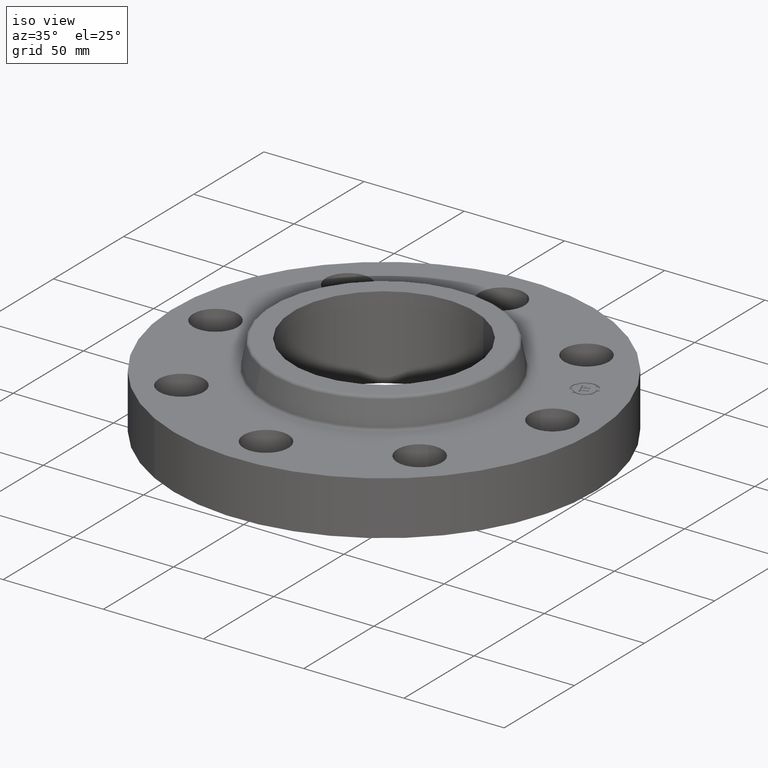
[diagram: clean part render]
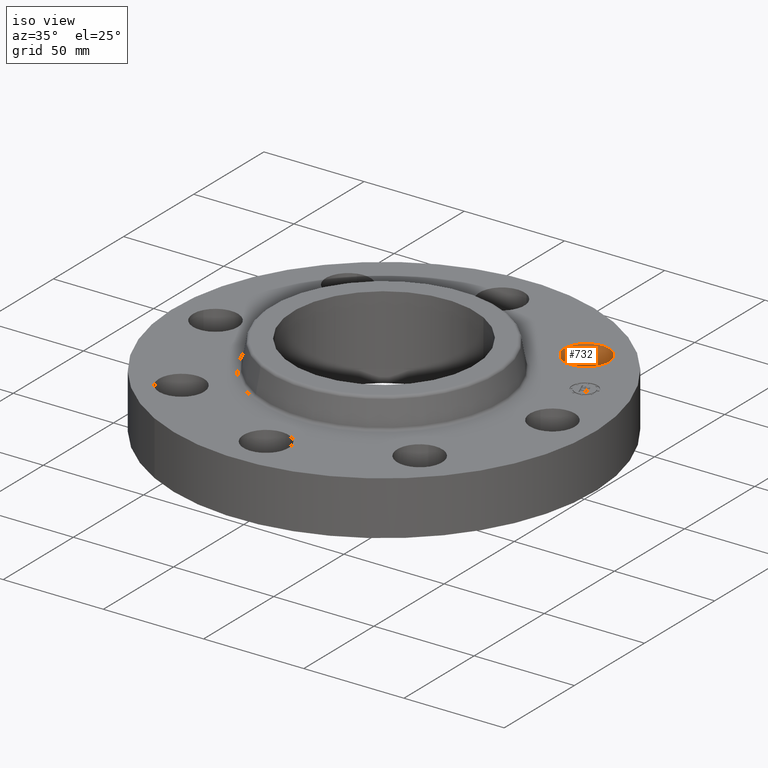
[diagram: same view with one face highlighted and labeled with its STEP entity id]
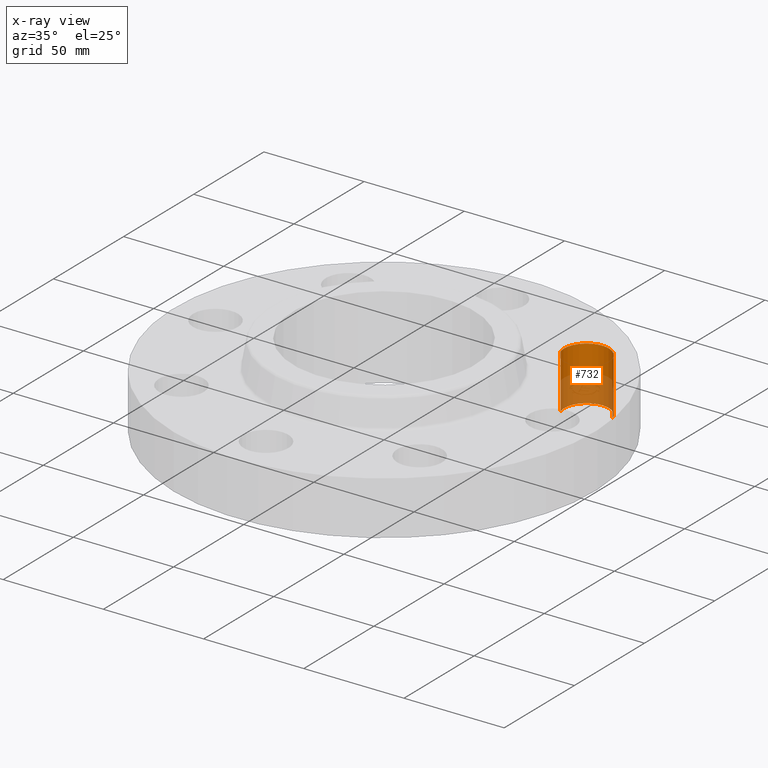
[diagram: x-ray of the same camera — body ghosted, the highlighted face saturated]
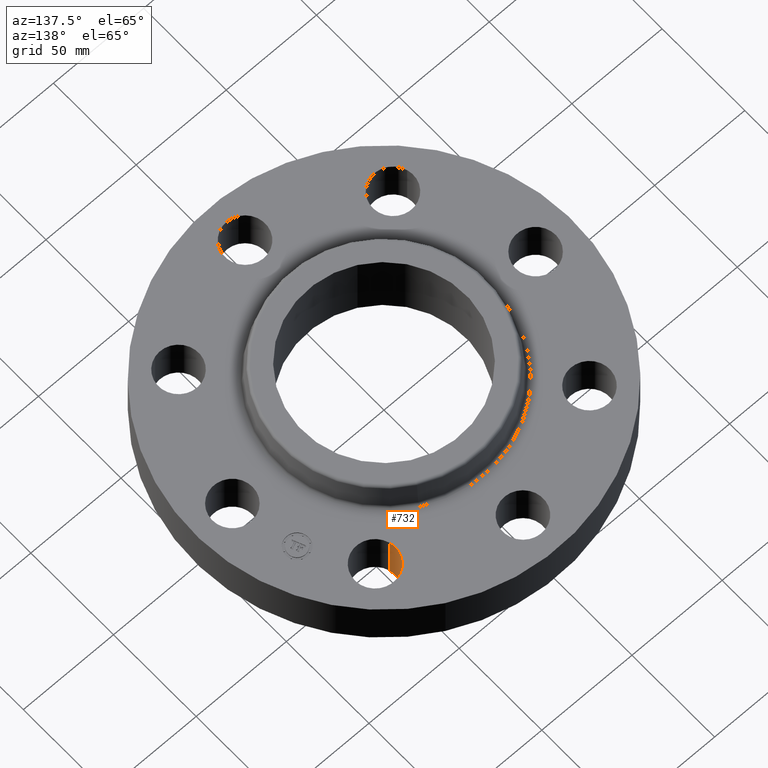
[diagram: same view with one face highlighted and labeled with its STEP entity id]
A machine part, iso view. The second image highlights one B-rep face of the part: STEP entity #732.
The next image is the same camera in x-ray: the body ghosted, the highlighted face saturated — about 51% of this face is hidden behind the body in this view.
A second angle (auxiliary view) of the same face is appended — the face is thin or edge-on in the first view.
In plain terms, the highlighted cylindrical surface (edge-blend (fillet) strip) has radius 11.176 mm, axis along (0, 0, -1).
Its self-contained STEP definition (entity closure, byte-faithful):
#513=AXIS2_PLACEMENT_3D('Circle Axis2P3D',#511,#512,$) ;
#705=AXIS2_PLACEMENT_3D('Cylinder Axis2P3D',#702,#703,#704) ;
#723=AXIS2_PLACEMENT_3D('Circle Axis2P3D',#721,#722,$) ;
#511=CARTESIAN_POINT('Axis2P3D Location',(2.34052344574,2.34052344574,0.)) ;
#515=CARTESIAN_POINT('Vertex',(1.91832160854,2.21664605203,0.)) ;
#517=CARTESIAN_POINT('Vertex',(2.76272528293,2.46440083944,0.)) ;
#702=CARTESIAN_POINT('Axis2P3D Location',(2.34052344574,2.34052344574,1.05606299213)) ;
#707=CARTESIAN_POINT('Line Origine',(1.91832160854,2.21664605203,0.530000000002)) ;
#711=CARTESIAN_POINT('Vertex',(1.91832160854,2.21664605203,1.06)) ;
#714=CARTESIAN_POINT('Line Origine',(2.76272528293,2.46440083944,0.530000000002)) ;
#718=CARTESIAN_POINT('Vertex',(2.76272528293,2.46440083944,1.06)) ;
#721=CARTESIAN_POINT('Axis2P3D Location',(2.34052344574,2.34052344574,1.06)) ;
#512=DIRECTION('Axis2P3D Direction',(0.,0.,-0.0393700787402)) ;
#703=DIRECTION('Axis2P3D Direction',(0.,0.,-0.0393700787402)) ;
#704=DIRECTION('Axis2P3D XDirection',(0.0377775444876,0.0110842335096,0.)) ;
#708=DIRECTION('Vector Direction',(0.,0.,-0.0393700787402)) ;
#715=DIRECTION('Vector Direction',(0.,0.,-0.0393700787402)) ;
#722=DIRECTION('Axis2P3D Direction',(0.,0.,-0.0393700787402)) ;
#709=VECTOR('Line Direction',#708,0.0393700787402) ;
#716=VECTOR('Line Direction',#715,0.0393700787402) ;
#727=ORIENTED_EDGE('',*,*,#713,.F.) ;
#728=ORIENTED_EDGE('',*,*,#519,.T.) ;
#729=ORIENTED_EDGE('',*,*,#720,.T.) ;
#730=ORIENTED_EDGE('',*,*,#725,.F.) ;
#732=ADVANCED_FACE('PartBody',(#731),#706,.F.) ;
#514=CIRCLE('generated circle',#513,0.440000000002) ;
#724=CIRCLE('generated circle',#723,0.440000000002) ;
#706=CYLINDRICAL_SURFACE('generated cylinder',#705,0.440000000002) ;
#519=EDGE_CURVE('',#516,#518,#514,.T.) ;
#713=EDGE_CURVE('',#516,#712,#710,.F.) ;
#720=EDGE_CURVE('',#518,#719,#717,.F.) ;
#725=EDGE_CURVE('',#712,#719,#724,.T.) ;
#726=EDGE_LOOP('',(#727,#728,#729,#730)) ;
#731=FACE_OUTER_BOUND('',#726,.T.) ;
#710=LINE('Line',#707,#709) ;
#717=LINE('Line',#714,#716) ;
#516=VERTEX_POINT('',#515) ;
#518=VERTEX_POINT('',#517) ;
#712=VERTEX_POINT('',#711) ;
#719=VERTEX_POINT('',#718) ;